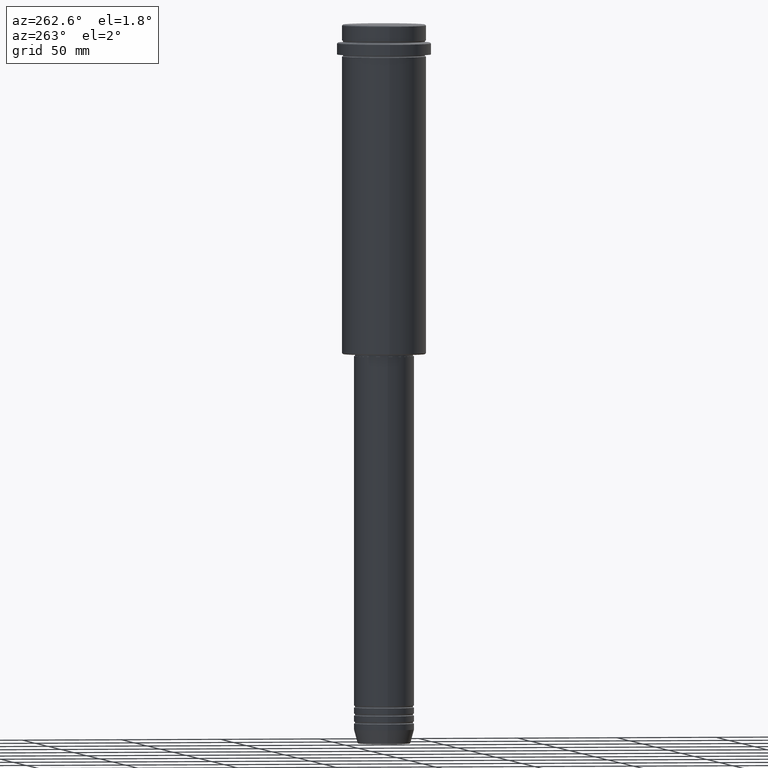
[diagram: clean part render]
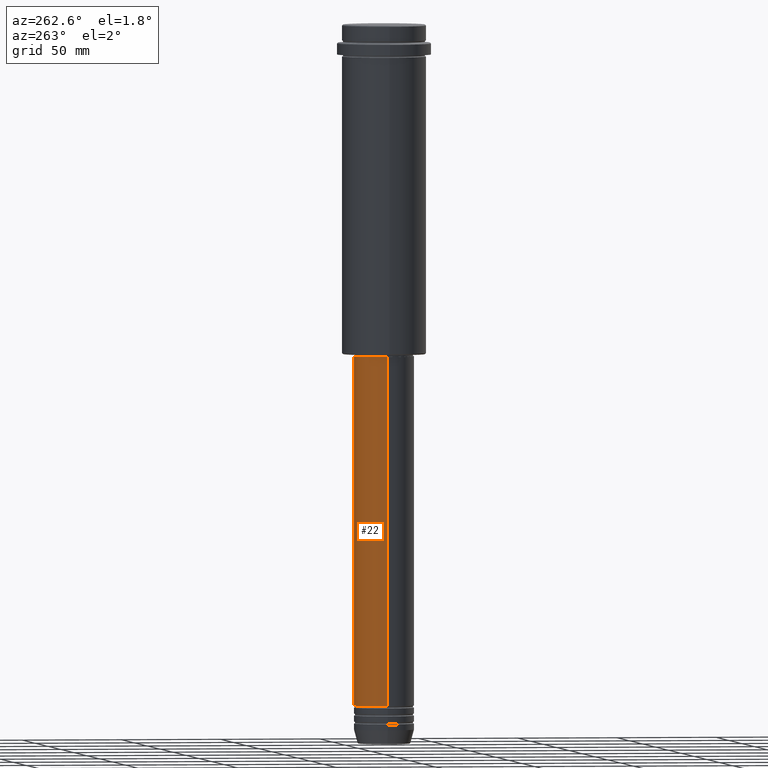
[diagram: same view with one face highlighted and labeled with its STEP entity id]
A machine part, auxiliary view. The second image highlights one B-rep face of the part: STEP entity #22.
In plain terms, the highlighted cylindrical surface (edge-blend (fillet) strip) has radius 15 mm, axis along (-0, -0, 1).
Its self-contained STEP definition (entity closure, byte-faithful):
#4 = LINE ( 'NONE', #329, #651 ) ;
#22 = ADVANCED_FACE ( 'NONE', ( #1024 ), #480, .T. ) ;
#42 = CARTESIAN_POINT ( 'NONE',  ( -15.00000000000000000, 1.836970198721029589E-15, -340.9999999999998863 ) ) ;
#161 = CARTESIAN_POINT ( 'NONE',  ( -15.00000000000000000, 1.836970198721029589E-15, -165.9999999999999432 ) ) ;
#173 = CARTESIAN_POINT ( 'NONE',  ( 15.00000000000000000, 0.000000000000000000, -340.9999999999998863 ) ) ;
#177 = DIRECTION ( 'NONE',  ( -0.000000000000000000, -0.000000000000000000, 1.000000000000000000 ) ) ;
#206 = VERTEX_POINT ( 'NONE', #173 ) ;
#263 = EDGE_LOOP ( 'NONE', ( #825, #912, #815, #371 ) ) ;
#275 = CIRCLE ( 'NONE', #586, 15.00000000000000000 ) ;
#298 = AXIS2_PLACEMENT_3D ( 'NONE', #1047, #1032, #1375 ) ;
#329 = CARTESIAN_POINT ( 'NONE',  ( -15.00000000000000000, 1.836970198721029589E-15, 0.000000000000000000 ) ) ;
#333 = DIRECTION ( 'NONE',  ( -0.000000000000000000, -0.000000000000000000, 1.000000000000000000 ) ) ;
#338 = CARTESIAN_POINT ( 'NONE',  ( 0.000000000000000000, 0.000000000000000000, -165.9999999999999432 ) ) ;
#360 = EDGE_CURVE ( 'NONE', #1258, #411, #4, .T. ) ;
#371 = ORIENTED_EDGE ( 'NONE', *, *, #1354, .F. ) ;
#411 = VERTEX_POINT ( 'NONE', #161 ) ;
#480 = CYLINDRICAL_SURFACE ( 'NONE', #1359, 15.00000000000000000 ) ;
#529 = CIRCLE ( 'NONE', #298, 15.00000000000000000 ) ;
#554 = DIRECTION ( 'NONE',  ( 1.000000000000000000, 0.000000000000000000, 0.000000000000000000 ) ) ;
#586 = AXIS2_PLACEMENT_3D ( 'NONE', #338, #333, #554 ) ;
#651 = VECTOR ( 'NONE', #1205, 1000.000000000000000 ) ;
#704 = LINE ( 'NONE', #1142, #1087 ) ;
#734 = VERTEX_POINT ( 'NONE', #793 ) ;
#793 = CARTESIAN_POINT ( 'NONE',  ( 15.00000000000000000, 0.000000000000000000, -165.9999999999999432 ) ) ;
#815 = ORIENTED_EDGE ( 'NONE', *, *, #1116, .F. ) ;
#825 = ORIENTED_EDGE ( 'NONE', *, *, #872, .T. ) ;
#872 = EDGE_CURVE ( 'NONE', #206, #1258, #529, .T. ) ;
#912 = ORIENTED_EDGE ( 'NONE', *, *, #360, .T. ) ;
#923 = DIRECTION ( 'NONE',  ( 1.000000000000000000, 0.000000000000000000, 0.000000000000000000 ) ) ;
#1024 = FACE_OUTER_BOUND ( 'NONE', #263, .T. ) ;
#1025 = DIRECTION ( 'NONE',  ( -0.000000000000000000, -0.000000000000000000, 1.000000000000000000 ) ) ;
#1032 = DIRECTION ( 'NONE',  ( -0.000000000000000000, -0.000000000000000000, 1.000000000000000000 ) ) ;
#1047 = CARTESIAN_POINT ( 'NONE',  ( 0.000000000000000000, 0.000000000000000000, -340.9999999999998863 ) ) ;
#1087 = VECTOR ( 'NONE', #1025, 1000.000000000000000 ) ;
#1116 = EDGE_CURVE ( 'NONE', #734, #411, #275, .T. ) ;
#1142 = CARTESIAN_POINT ( 'NONE',  ( 15.00000000000000000, 0.000000000000000000, 0.000000000000000000 ) ) ;
#1164 = CARTESIAN_POINT ( 'NONE',  ( 0.000000000000000000, 0.000000000000000000, 0.000000000000000000 ) ) ;
#1205 = DIRECTION ( 'NONE',  ( -0.000000000000000000, -0.000000000000000000, 1.000000000000000000 ) ) ;
#1258 = VERTEX_POINT ( 'NONE', #42 ) ;
#1354 = EDGE_CURVE ( 'NONE', #206, #734, #704, .T. ) ;
#1359 = AXIS2_PLACEMENT_3D ( 'NONE', #1164, #177, #923 ) ;
#1375 = DIRECTION ( 'NONE',  ( 1.000000000000000000, 0.000000000000000000, 0.000000000000000000 ) ) ;